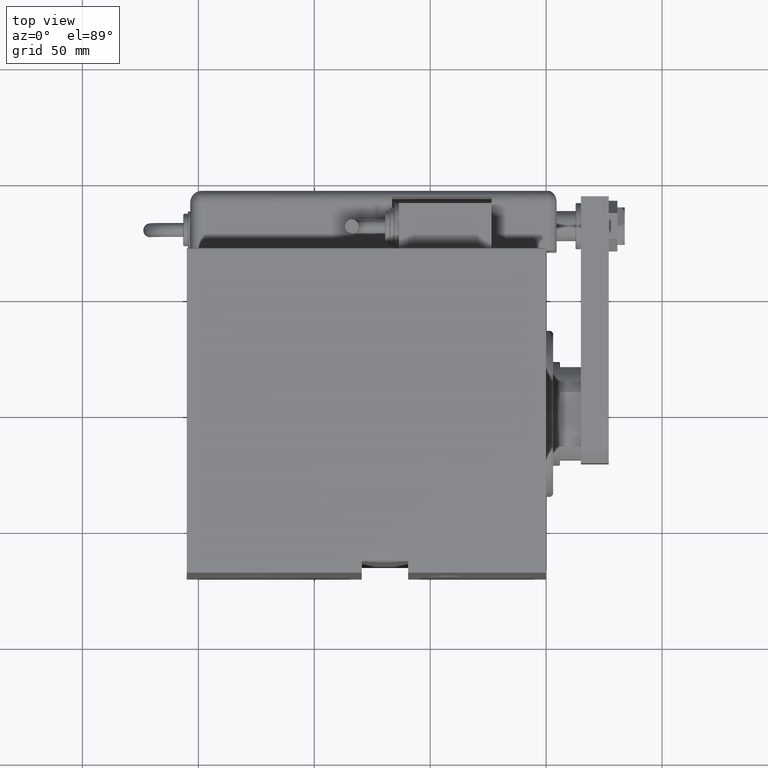
[diagram: clean part render]
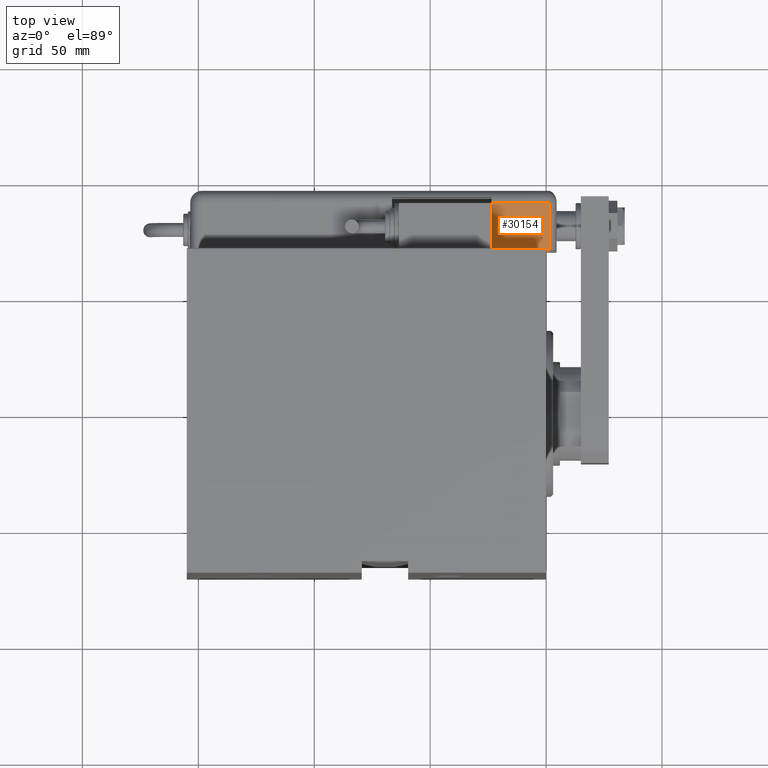
[diagram: same view with one face highlighted and labeled with its STEP entity id]
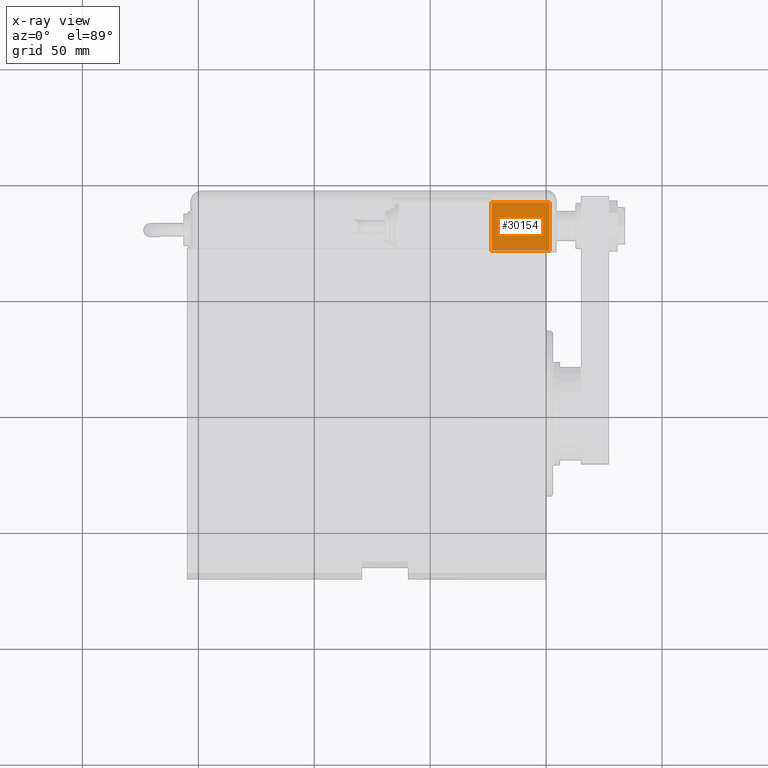
[diagram: x-ray of the same camera — body ghosted, the highlighted face saturated]
A machine part, top view. The second image highlights one B-rep face of the part: STEP entity #30154.
The next image is the same camera in x-ray: the body ghosted, the highlighted face saturated — about 5% of this face is hidden behind the body in this view.
In plain terms, the highlighted planar face has unit normal (0, 0, -1).
Its self-contained STEP definition (entity closure, byte-faithful):
#629 = CARTESIAN_POINT ( 'NONE',  ( -28.99999999999999645, 20.79999999999998295, 130.0000000000000000 ) ) ;
#2002 = CARTESIAN_POINT ( 'NONE',  ( -28.99999999999999645, -9.421223957302265857E-15, 155.0000000000000000 ) ) ;
#3982 = CARTESIAN_POINT ( 'NONE',  ( -28.99999999999999645, 25.79999999999998295, 155.0000000000000000 ) ) ;
#4176 = LINE ( 'NONE', #48162, #20308 ) ;
#7736 = DIRECTION ( 'NONE',  ( 0.000000000000000000, 0.000000000000000000, -1.000000000000000000 ) ) ;
#9550 = VECTOR ( 'NONE', #29142, 1000.000000000000000 ) ;
#11100 = CARTESIAN_POINT ( 'NONE',  ( -28.99999999999999645, 22.99999999999998934, 130.0000000000000000 ) ) ;
#12279 = DIRECTION ( 'NONE',  ( -0.000000000000000000, 0.000000000000000000, -1.000000000000000000 ) ) ;
#12542 = LINE ( 'NONE', #56514, #46643 ) ;
#19880 = EDGE_CURVE ( 'NONE', #45473, #54339, #37652, .T. ) ;
#20225 = DIRECTION ( 'NONE',  ( -0.000000000000000000, -0.000000000000000000, -1.000000000000000000 ) ) ;
#20308 = VECTOR ( 'NONE', #7736, 1000.000000000000000 ) ;
#21112 = VECTOR ( 'NONE', #29092, 1000.000000000000000 ) ;
#23695 = EDGE_CURVE ( 'NONE', #39785, #54339, #4176, .T. ) ;
#26803 = ORIENTED_EDGE ( 'NONE', *, *, #55656, .F. ) ;
#27663 = CARTESIAN_POINT ( 'NONE',  ( -28.99999999999999645, -9.421223957302265857E-15, 130.0000000000000000 ) ) ;
#29002 = ORIENTED_EDGE ( 'NONE', *, *, #23695, .T. ) ;
#29092 = DIRECTION ( 'NONE',  ( -0.000000000000000000, 1.000000000000000000, -0.000000000000000000 ) ) ;
#29142 = DIRECTION ( 'NONE',  ( 0.000000000000000000, -1.000000000000000000, 0.000000000000000000 ) ) ;
#30108 = ORIENTED_EDGE ( 'NONE', *, *, #47389, .F. ) ;
#30154 = ADVANCED_FACE ( 'NONE', ( #34410 ), #56528, .F. ) ;
#30519 = EDGE_LOOP ( 'NONE', ( #29002, #51235, #26803, #30108 ) ) ;
#31691 = AXIS2_PLACEMENT_3D ( 'NONE', #3982, #43544, #12279 ) ;
#34151 = CARTESIAN_POINT ( 'NONE',  ( -28.99999999999999645, 25.79999999999998295, 155.0000000000000000 ) ) ;
#34410 = FACE_OUTER_BOUND ( 'NONE', #30519, .T. ) ;
#37652 = LINE ( 'NONE', #11100, #21112 ) ;
#39785 = VERTEX_POINT ( 'NONE', #49829 ) ;
#39908 = VERTEX_POINT ( 'NONE', #2002 ) ;
#43544 = DIRECTION ( 'NONE',  ( 1.000000000000000000, 0.000000000000000000, -0.000000000000000000 ) ) ;
#45473 = VERTEX_POINT ( 'NONE', #27663 ) ;
#46643 = VECTOR ( 'NONE', #20225, 1000.000000000000000 ) ;
#47389 = EDGE_CURVE ( 'NONE', #39785, #39908, #56864, .T. ) ;
#48162 = CARTESIAN_POINT ( 'NONE',  ( -28.99999999999999645, 20.79999999999998295, 155.0000000000000000 ) ) ;
#49829 = CARTESIAN_POINT ( 'NONE',  ( -28.99999999999999645, 20.79999999999998295, 155.0000000000000000 ) ) ;
#51235 = ORIENTED_EDGE ( 'NONE', *, *, #19880, .F. ) ;
#54339 = VERTEX_POINT ( 'NONE', #629 ) ;
#55656 = EDGE_CURVE ( 'NONE', #39908, #45473, #12542, .T. ) ;
#56514 = CARTESIAN_POINT ( 'NONE',  ( -28.99999999999999645, -9.421223957302265857E-15, 155.0000000000000000 ) ) ;
#56528 = PLANE ( 'NONE',  #31691 ) ;
#56864 = LINE ( 'NONE', #34151, #9550 ) ;